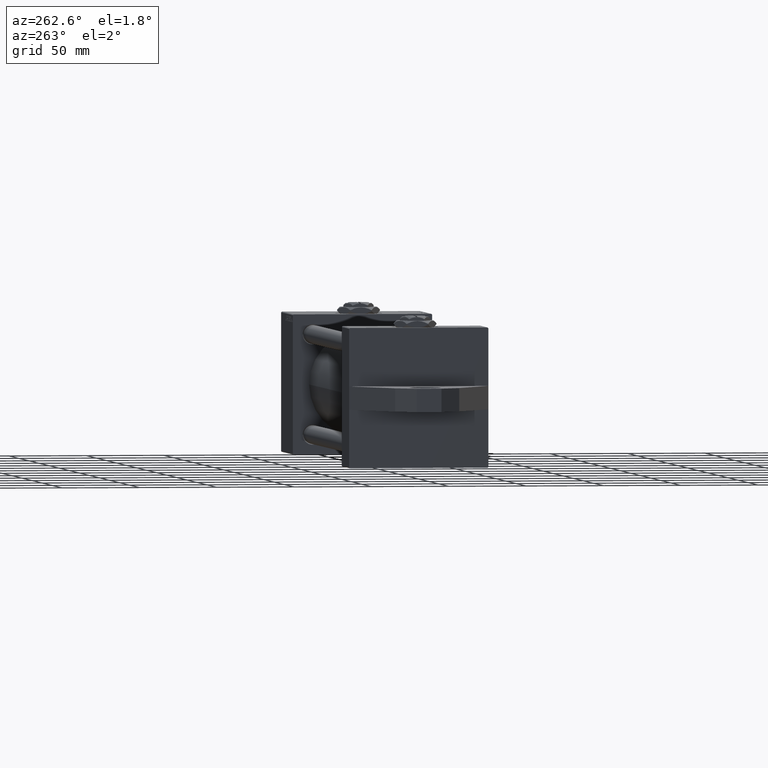
[diagram: clean part render]
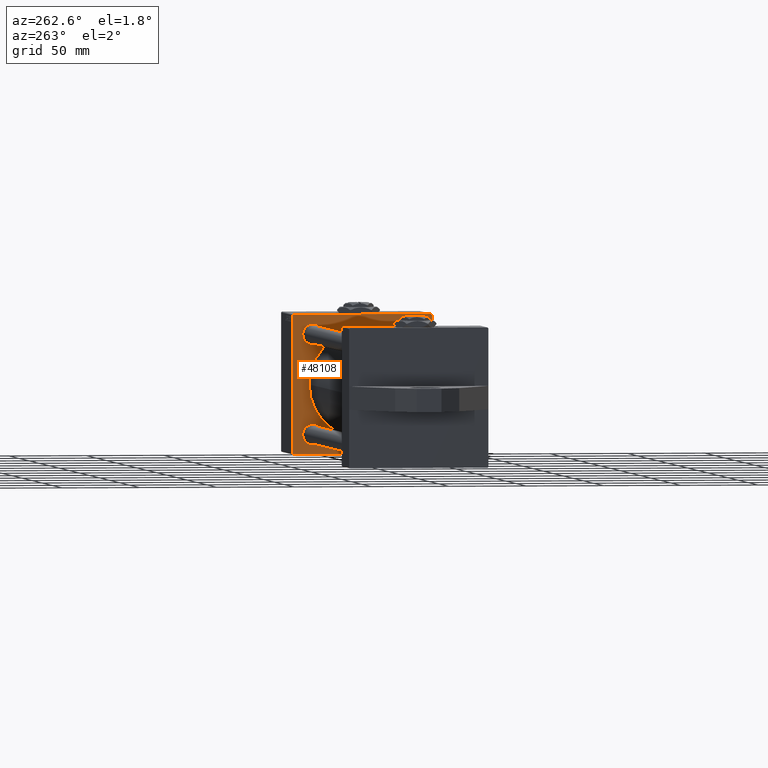
[diagram: same view with one face highlighted and labeled with its STEP entity id]
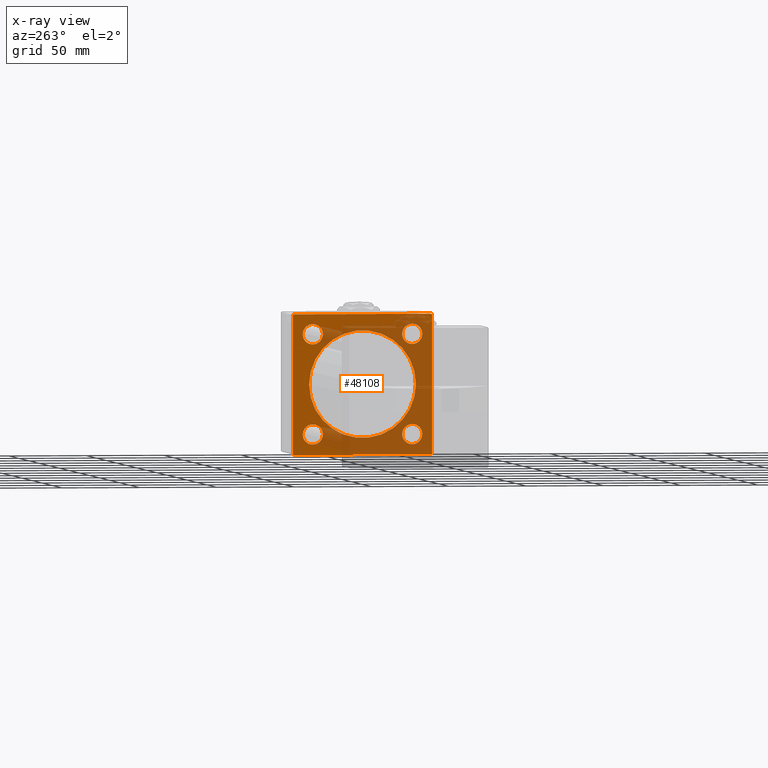
[diagram: x-ray of the same camera — body ghosted, the highlighted face saturated]
A machine part, auxiliary view. The second image highlights one B-rep face of the part: STEP entity #48108.
The next image is the same camera in x-ray: the body ghosted, the highlighted face saturated — about 57% of this face is hidden behind the body in this view.
In plain terms, the highlighted planar face has unit normal (-1, -0, 0).
Its self-contained STEP definition (entity closure, byte-faithful):
#492 = ORIENTED_EDGE ( 'NONE', *, *, #43658, .T. ) ;
#1046 = FACE_BOUND ( 'NONE', #41845, .T. ) ;
#1268 = EDGE_LOOP ( 'NONE', ( #38526, #43461 ) ) ;
#1319 = VERTEX_POINT ( 'NONE', #31557 ) ;
#1391 = AXIS2_PLACEMENT_3D ( 'NONE', #6872, #21642, #36626 ) ;
#1416 = EDGE_CURVE ( 'NONE', #34983, #19065, #32468, .T. ) ;
#1423 = CIRCLE ( 'NONE', #15523, 6.499999999999895195 ) ;
#1511 = EDGE_LOOP ( 'NONE', ( #18306, #39547 ) ) ;
#1766 = EDGE_CURVE ( 'NONE', #41313, #12109, #27574, .T. ) ;
#2390 = DIRECTION ( 'NONE',  ( 0.000000000000000000, 0.000000000000000000, -1.000000000000000000 ) ) ;
#2701 = EDGE_CURVE ( 'NONE', #40483, #15371, #21657, .T. ) ;
#2721 = DIRECTION ( 'NONE',  ( 0.000000000000000000, 0.000000000000000000, 1.000000000000000000 ) ) ;
#2740 = DIRECTION ( 'NONE',  ( 0.000000000000000000, 0.7071067811865474617, -0.7071067811865474617 ) ) ;
#3183 = LINE ( 'NONE', #10788, #27380 ) ;
#3879 = AXIS2_PLACEMENT_3D ( 'NONE', #38734, #41669, #26689 ) ;
#4066 = VECTOR ( 'NONE', #2740, 1000.000000000000114 ) ;
#4337 = DIRECTION ( 'NONE',  ( 0.000000000000000000, 0.000000000000000000, 1.000000000000000000 ) ) ;
#4498 = EDGE_CURVE ( 'NONE', #39960, #39057, #25325, .T. ) ;
#5207 = CARTESIAN_POINT ( 'NONE',  ( 279.9999999999999432, -32.15000000000001279, -25.65000000000010871 ) ) ;
#5280 = CARTESIAN_POINT ( 'NONE',  ( 279.9999999999999432, 32.14999999999999147, 38.64999999999995595 ) ) ;
#5903 = VERTEX_POINT ( 'NONE', #25692 ) ;
#6257 = DIRECTION ( 'NONE',  ( 1.000000000000000000, 0.000000000000000000, 0.000000000000000000 ) ) ;
#6406 = CARTESIAN_POINT ( 'NONE',  ( 279.9999999999999432, -44.74999999999968736, -44.75000000000031264 ) ) ;
#6701 = VERTEX_POINT ( 'NONE', #16991 ) ;
#6872 = CARTESIAN_POINT ( 'NONE',  ( 279.9999999999999432, -2.602085213965210642E-15, 0.000000000000000000 ) ) ;
#6878 = CIRCLE ( 'NONE', #1391, 34.50000000000000000 ) ;
#6969 = CARTESIAN_POINT ( 'NONE',  ( 279.9999999999999432, -32.15000000000001279, -32.15000000000000568 ) ) ;
#7392 = VERTEX_POINT ( 'NONE', #5207 ) ;
#7913 = CIRCLE ( 'NONE', #35421, 6.499999999999950262 ) ;
#8407 = CARTESIAN_POINT ( 'NONE',  ( 279.9999999999999432, 0.000000000000000000, 0.000000000000000000 ) ) ;
#9120 = DIRECTION ( 'NONE',  ( 0.000000000000000000, 0.000000000000000000, 1.000000000000000000 ) ) ;
#9398 = CARTESIAN_POINT ( 'NONE',  ( 279.9999999999999432, -32.15000000000001279, -38.64999999999989910 ) ) ;
#9483 = VECTOR ( 'NONE', #37333, 999.9999999999998863 ) ;
#10788 = CARTESIAN_POINT ( 'NONE',  ( 279.9999999999999432, 44.75000000000000000, -44.75000000000000000 ) ) ;
#11268 = ORIENTED_EDGE ( 'NONE', *, *, #27083, .F. ) ;
#11426 = ORIENTED_EDGE ( 'NONE', *, *, #4498, .T. ) ;
#11433 = CARTESIAN_POINT ( 'NONE',  ( 279.9999999999999432, 44.49999999999995737, 45.00000000000000000 ) ) ;
#11947 = CARTESIAN_POINT ( 'NONE',  ( 279.9999999999999432, 32.14999999999999147, 32.15000000000000568 ) ) ;
#12021 = CARTESIAN_POINT ( 'NONE',  ( 279.9999999999999432, 32.14999999999999147, -32.15000000000000568 ) ) ;
#12109 = VERTEX_POINT ( 'NONE', #21902 ) ;
#12128 = VERTEX_POINT ( 'NONE', #29045 ) ;
#12334 = FACE_OUTER_BOUND ( 'NONE', #16679, .T. ) ;
#12352 = ORIENTED_EDGE ( 'NONE', *, *, #35155, .T. ) ;
#13166 = CARTESIAN_POINT ( 'NONE',  ( 279.9999999999999432, -32.14999999999999147, 38.64999999999994174 ) ) ;
#13429 = CARTESIAN_POINT ( 'NONE',  ( 279.9999999999999432, 45.00000000000001421, 45.00000000000000000 ) ) ;
#13597 = CARTESIAN_POINT ( 'NONE',  ( 279.9999999999999432, -32.14999999999999147, 32.14999999999999147 ) ) ;
#13709 = VERTEX_POINT ( 'NONE', #46146 ) ;
#14265 = EDGE_CURVE ( 'NONE', #7392, #48025, #32651, .T. ) ;
#14837 = ORIENTED_EDGE ( 'NONE', *, *, #41673, .T. ) ;
#14839 = ORIENTED_EDGE ( 'NONE', *, *, #38636, .F. ) ;
#15371 = VERTEX_POINT ( 'NONE', #42629 ) ;
#15523 = AXIS2_PLACEMENT_3D ( 'NONE', #28540, #35914, #9120 ) ;
#15733 = EDGE_CURVE ( 'NONE', #6701, #5903, #26485, .T. ) ;
#16069 = ORIENTED_EDGE ( 'NONE', *, *, #14265, .T. ) ;
#16679 = EDGE_LOOP ( 'NONE', ( #40485, #48050, #11268, #29307, #14839, #29335, #12352, #25089 ) ) ;
#16991 = CARTESIAN_POINT ( 'NONE',  ( 279.9999999999999432, -45.00000000000000000, 44.50000000000004263 ) ) ;
#17207 = AXIS2_PLACEMENT_3D ( 'NONE', #12021, #19917, #35147 ) ;
#17912 = CARTESIAN_POINT ( 'NONE',  ( 279.9999999999999432, 32.14999999999999147, 25.65000000000005542 ) ) ;
#17960 = CARTESIAN_POINT ( 'NONE',  ( 279.9999999999999432, 44.74999999999997158, 44.74999999999997158 ) ) ;
#18191 = VERTEX_POINT ( 'NONE', #24969 ) ;
#18206 = CARTESIAN_POINT ( 'NONE',  ( 279.9999999999999432, -44.75000000000001421, 44.75000000000001421 ) ) ;
#18306 = ORIENTED_EDGE ( 'NONE', *, *, #19794, .T. ) ;
#18519 = EDGE_LOOP ( 'NONE', ( #492, #27965 ) ) ;
#18520 = VECTOR ( 'NONE', #36654, 1000.000000000000114 ) ;
#18645 = DIRECTION ( 'NONE',  ( -0.000000000000000000, -0.7071067811865474617, -0.7071067811865474617 ) ) ;
#18819 = EDGE_CURVE ( 'NONE', #12128, #13709, #6878, .T. ) ;
#19065 = VERTEX_POINT ( 'NONE', #13166 ) ;
#19109 = AXIS2_PLACEMENT_3D ( 'NONE', #13597, #24920, #32293 ) ;
#19602 = CARTESIAN_POINT ( 'NONE',  ( 279.9999999999999432, -45.00000000000000000, 44.99999999999998579 ) ) ;
#19794 = EDGE_CURVE ( 'NONE', #19065, #34983, #23363, .T. ) ;
#19917 = DIRECTION ( 'NONE',  ( 1.000000000000000000, 0.000000000000000000, 0.000000000000000000 ) ) ;
#19983 = DIRECTION ( 'NONE',  ( -0.000000000000000000, 0.000000000000000000, 1.000000000000000000 ) ) ;
#21485 = VECTOR ( 'NONE', #24370, 1000.000000000000000 ) ;
#21642 = DIRECTION ( 'NONE',  ( 1.000000000000000000, 0.000000000000000000, 0.000000000000000000 ) ) ;
#21648 = CARTESIAN_POINT ( 'NONE',  ( 279.9999999999999432, -32.14999999999999147, 32.14999999999999147 ) ) ;
#21657 = LINE ( 'NONE', #17960, #4066 ) ;
#21902 = CARTESIAN_POINT ( 'NONE',  ( 279.9999999999999432, -44.49999999999995737, -45.00000000000000000 ) ) ;
#21910 = AXIS2_PLACEMENT_3D ( 'NONE', #27673, #36439, #42654 ) ;
#23152 = EDGE_CURVE ( 'NONE', #48025, #7392, #1423, .T. ) ;
#23363 = CIRCLE ( 'NONE', #37494, 6.499999999999950262 ) ;
#24116 = CARTESIAN_POINT ( 'NONE',  ( 279.9999999999999432, -32.14999999999999147, 25.65000000000004121 ) ) ;
#24243 = CARTESIAN_POINT ( 'NONE',  ( 279.9999999999999432, 45.00000000000001421, 45.00000000000000000 ) ) ;
#24370 = DIRECTION ( 'NONE',  ( 0.000000000000000000, -1.000000000000000000, 0.000000000000000000 ) ) ;
#24482 = DIRECTION ( 'NONE',  ( 0.000000000000000000, -1.000000000000000000, -1.541976423090495140E-16 ) ) ;
#24920 = DIRECTION ( 'NONE',  ( 1.000000000000000000, 0.000000000000000000, 0.000000000000000000 ) ) ;
#24969 = CARTESIAN_POINT ( 'NONE',  ( 279.9999999999999432, -44.99999999999999289, -44.49999999999997158 ) ) ;
#25089 = ORIENTED_EDGE ( 'NONE', *, *, #38137, .T. ) ;
#25112 = CIRCLE ( 'NONE', #3879, 34.50000000000000000 ) ;
#25324 = DIRECTION ( 'NONE',  ( 1.000000000000000000, 0.000000000000000000, 0.000000000000000000 ) ) ;
#25325 = CIRCLE ( 'NONE', #35580, 6.499999999999888090 ) ;
#25555 = AXIS2_PLACEMENT_3D ( 'NONE', #6969, #6257, #44342 ) ;
#25567 = LINE ( 'NONE', #6406, #9483 ) ;
#25692 = CARTESIAN_POINT ( 'NONE',  ( 279.9999999999999432, -44.50000000000002842, 44.99999999999998579 ) ) ;
#26485 = LINE ( 'NONE', #18206, #18520 ) ;
#26689 = DIRECTION ( 'NONE',  ( 0.000000000000000000, 0.000000000000000000, -1.000000000000000000 ) ) ;
#27020 = VERTEX_POINT ( 'NONE', #17912 ) ;
#27083 = EDGE_CURVE ( 'NONE', #6701, #18191, #30412, .T. ) ;
#27380 = VECTOR ( 'NONE', #18645, 1000.000000000000114 ) ;
#27574 = LINE ( 'NONE', #28306, #21485 ) ;
#27655 = VERTEX_POINT ( 'NONE', #5280 ) ;
#27673 = CARTESIAN_POINT ( 'NONE',  ( 279.9999999999999432, 32.14999999999999147, 32.15000000000000568 ) ) ;
#27965 = ORIENTED_EDGE ( 'NONE', *, *, #18819, .T. ) ;
#28201 = CIRCLE ( 'NONE', #21910, 6.499999999999950262 ) ;
#28306 = CARTESIAN_POINT ( 'NONE',  ( 279.9999999999999432, 45.00000000000001421, -45.00000000000000000 ) ) ;
#28540 = CARTESIAN_POINT ( 'NONE',  ( 279.9999999999999432, -32.15000000000001279, -32.15000000000000568 ) ) ;
#29045 = CARTESIAN_POINT ( 'NONE',  ( 279.9999999999999432, 1.622946243093158675E-15, -34.50000000000000000 ) ) ;
#29307 = ORIENTED_EDGE ( 'NONE', *, *, #15733, .T. ) ;
#29335 = ORIENTED_EDGE ( 'NONE', *, *, #2701, .T. ) ;
#30412 = LINE ( 'NONE', #19602, #35316 ) ;
#31557 = CARTESIAN_POINT ( 'NONE',  ( 279.9999999999999432, 45.00000000000001421, -44.49999999999997158 ) ) ;
#31766 = FACE_BOUND ( 'NONE', #37654, .T. ) ;
#32293 = DIRECTION ( 'NONE',  ( 0.000000000000000000, 0.000000000000000000, 1.000000000000000000 ) ) ;
#32468 = CIRCLE ( 'NONE', #19109, 6.499999999999950262 ) ;
#32651 = CIRCLE ( 'NONE', #25555, 6.499999999999895195 ) ;
#33231 = CARTESIAN_POINT ( 'NONE',  ( 279.9999999999999432, 32.14999999999999147, -38.64999999999989200 ) ) ;
#33595 = DIRECTION ( 'NONE',  ( 1.000000000000000000, 0.000000000000000000, 0.000000000000000000 ) ) ;
#34710 = FACE_BOUND ( 'NONE', #1511, .T. ) ;
#34983 = VERTEX_POINT ( 'NONE', #24116 ) ;
#35147 = DIRECTION ( 'NONE',  ( 0.000000000000000000, 0.000000000000000000, 1.000000000000000000 ) ) ;
#35155 = EDGE_CURVE ( 'NONE', #15371, #1319, #47107, .T. ) ;
#35316 = VECTOR ( 'NONE', #38267, 1000.000000000000000 ) ;
#35421 = AXIS2_PLACEMENT_3D ( 'NONE', #11947, #33595, #4337 ) ;
#35464 = FACE_BOUND ( 'NONE', #1268, .T. ) ;
#35580 = AXIS2_PLACEMENT_3D ( 'NONE', #47445, #25324, #2721 ) ;
#35914 = DIRECTION ( 'NONE',  ( 1.000000000000000000, 0.000000000000000000, 0.000000000000000000 ) ) ;
#36439 = DIRECTION ( 'NONE',  ( 1.000000000000000000, 0.000000000000000000, 0.000000000000000000 ) ) ;
#36626 = DIRECTION ( 'NONE',  ( 0.000000000000000000, 0.000000000000000000, -1.000000000000000000 ) ) ;
#36654 = DIRECTION ( 'NONE',  ( -0.000000000000000000, 0.7071067811865474617, 0.7071067811865474617 ) ) ;
#37312 = EDGE_CURVE ( 'NONE', #27655, #27020, #28201, .T. ) ;
#37333 = DIRECTION ( 'NONE',  ( 0.000000000000000000, -0.7071067811865525687, 0.7071067811865425767 ) ) ;
#37440 = CARTESIAN_POINT ( 'NONE',  ( 279.9999999999999432, 32.14999999999999147, -25.65000000000011582 ) ) ;
#37465 = VECTOR ( 'NONE', #2390, 1000.000000000000000 ) ;
#37494 = AXIS2_PLACEMENT_3D ( 'NONE', #21648, #39604, #43530 ) ;
#37654 = EDGE_LOOP ( 'NONE', ( #16069, #45189 ) ) ;
#38137 = EDGE_CURVE ( 'NONE', #1319, #41313, #3183, .T. ) ;
#38267 = DIRECTION ( 'NONE',  ( 0.000000000000000000, 7.709882115452478166E-17, -1.000000000000000000 ) ) ;
#38376 = CIRCLE ( 'NONE', #17207, 6.499999999999888090 ) ;
#38526 = ORIENTED_EDGE ( 'NONE', *, *, #37312, .T. ) ;
#38636 = EDGE_CURVE ( 'NONE', #40483, #5903, #38987, .T. ) ;
#38734 = CARTESIAN_POINT ( 'NONE',  ( 279.9999999999999432, -2.602085213965210642E-15, 0.000000000000000000 ) ) ;
#38902 = DIRECTION ( 'NONE',  ( -1.000000000000000000, 0.000000000000000000, -0.000000000000000000 ) ) ;
#38987 = LINE ( 'NONE', #24243, #43919 ) ;
#39057 = VERTEX_POINT ( 'NONE', #37440 ) ;
#39388 = FACE_BOUND ( 'NONE', #18519, .T. ) ;
#39547 = ORIENTED_EDGE ( 'NONE', *, *, #1416, .T. ) ;
#39604 = DIRECTION ( 'NONE',  ( 1.000000000000000000, 0.000000000000000000, 0.000000000000000000 ) ) ;
#39960 = VERTEX_POINT ( 'NONE', #33231 ) ;
#40483 = VERTEX_POINT ( 'NONE', #11433 ) ;
#40485 = ORIENTED_EDGE ( 'NONE', *, *, #1766, .T. ) ;
#41313 = VERTEX_POINT ( 'NONE', #47294 ) ;
#41669 = DIRECTION ( 'NONE',  ( 1.000000000000000000, 0.000000000000000000, 0.000000000000000000 ) ) ;
#41673 = EDGE_CURVE ( 'NONE', #39057, #39960, #38376, .T. ) ;
#41733 = AXIS2_PLACEMENT_3D ( 'NONE', #8407, #38902, #19983 ) ;
#41845 = EDGE_LOOP ( 'NONE', ( #14837, #11426 ) ) ;
#42629 = CARTESIAN_POINT ( 'NONE',  ( 279.9999999999999432, 45.00000000000001421, 44.49999999999994316 ) ) ;
#42654 = DIRECTION ( 'NONE',  ( 0.000000000000000000, 0.000000000000000000, 1.000000000000000000 ) ) ;
#43461 = ORIENTED_EDGE ( 'NONE', *, *, #46368, .T. ) ;
#43530 = DIRECTION ( 'NONE',  ( 0.000000000000000000, 0.000000000000000000, 1.000000000000000000 ) ) ;
#43658 = EDGE_CURVE ( 'NONE', #13709, #12128, #25112, .T. ) ;
#43919 = VECTOR ( 'NONE', #24482, 1000.000000000000000 ) ;
#44342 = DIRECTION ( 'NONE',  ( 0.000000000000000000, 0.000000000000000000, 1.000000000000000000 ) ) ;
#45189 = ORIENTED_EDGE ( 'NONE', *, *, #23152, .T. ) ;
#45624 = EDGE_CURVE ( 'NONE', #12109, #18191, #25567, .T. ) ;
#45774 = PLANE ( 'NONE',  #41733 ) ;
#46146 = CARTESIAN_POINT ( 'NONE',  ( 279.9999999999999432, -2.602085213965210642E-15, 34.50000000000000000 ) ) ;
#46368 = EDGE_CURVE ( 'NONE', #27020, #27655, #7913, .T. ) ;
#47107 = LINE ( 'NONE', #13429, #37465 ) ;
#47294 = CARTESIAN_POINT ( 'NONE',  ( 279.9999999999999432, 44.50000000000001421, -45.00000000000000000 ) ) ;
#47445 = CARTESIAN_POINT ( 'NONE',  ( 279.9999999999999432, 32.14999999999999147, -32.15000000000000568 ) ) ;
#48025 = VERTEX_POINT ( 'NONE', #9398 ) ;
#48050 = ORIENTED_EDGE ( 'NONE', *, *, #45624, .T. ) ;
#48108 = ADVANCED_FACE ( 'NONE', ( #34710, #35464, #1046, #31766, #39388, #12334 ), #45774, .T. ) ;